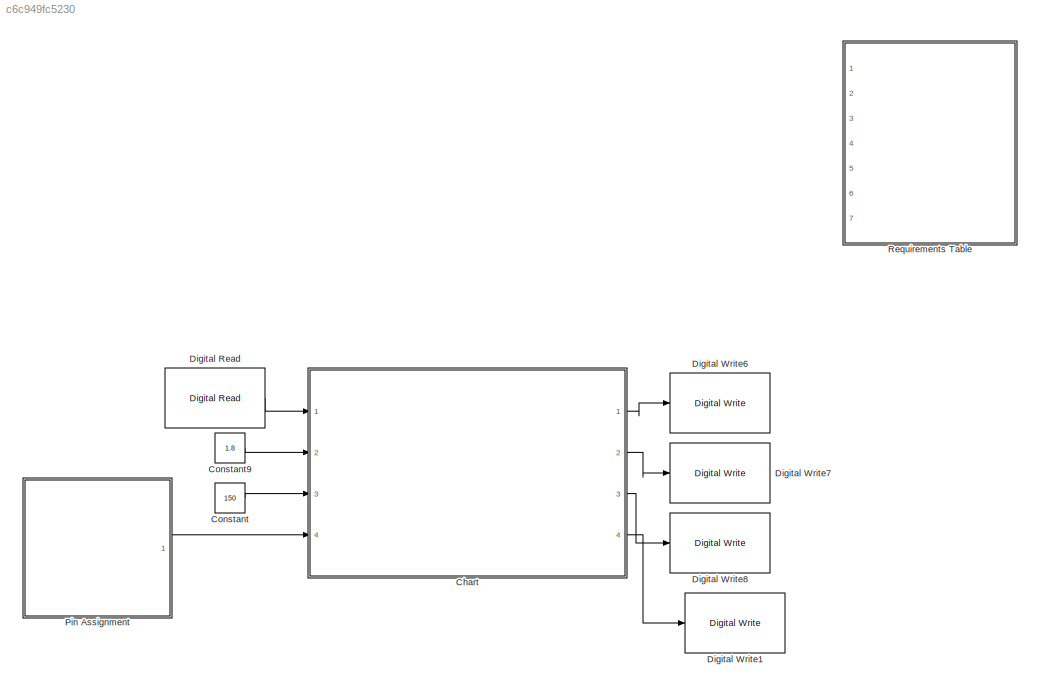
MODEL slx_c6c949fc5230
KIND model
CONFIG AbsTol = auto
CONFIG EnableMultiTasking = on
CONFIG FixedStep = 1e-3
CONFIG MaxStep = auto
CONFIG MinStep = auto
CONFIG RelTol = 1e-3
CONFIG SampleTimeConstraint = Unconstrained
CONFIG SolverName = FixedStepAuto
CONFIG StartTime = 0.0
CONFIG StopTime = 10.0
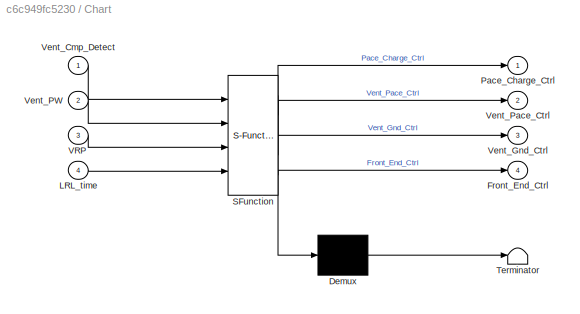
BLOCK [SubSystem] Chart
  ErrorFcn = Stateflow.Translate.translate
  PermitHierarchicalResolution = ExplicitOnly
  Ports = [4, 4]
  RequestExecContextInheritance = off
  SFBlockType = Chart
  TreatAsAtomicUnit = on
BLOCK [Demux] Chart/ Demux 
  Outputs = 1
  Ports = [1, 1]
BLOCK [S-Function] Chart/ SFunction 
  EnableBusSupport = on
  FunctionName = sf_sfun
  PortCounts = [4 5]
  Ports = [4, 5]
  SFcnIsStateOwnerBlock = off
  SFunctionDeploymentMode = off
  Tag = Stateflow S-Function 3
BLOCK [Terminator] Chart/ Terminator 
BLOCK [Outport] Chart/Front_End_Ctrl
  Port = 4
BLOCK [Inport] Chart/LRL_time
  Port = 4
BLOCK [Outport] Chart/Pace_Charge_Ctrl
BLOCK [Inport] Chart/VRP
  Port = 3
BLOCK [Inport] Chart/Vent_Cmp_Detect
BLOCK [Outport] Chart/Vent_Gnd_Ctrl
  Port = 3
BLOCK [Inport] Chart/Vent_PW
  Port = 2
BLOCK [Outport] Chart/Vent_Pace_Ctrl
  Port = 2
BLOCK [Constant] Constant
  OutDataTypeStr = int16
  Value = 150
BLOCK [Constant] Constant9
  Value = 1.8
BLOCK [Reference] Digital Read  REF=frdmk64flib/Digital Read
  Ports = [0, 1]
  SourceBlock = frdmk64flib/Digital Read
  SourceProductBaseCode = EC_FRDM_K64F
  SourceType = freedomk64f.DigitalRead
BLOCK [Reference] Digital Write1  REF=frdmk64flib/Digital Write
  Ports = [1]
  SourceBlock = frdmk64flib/Digital Write
  SourceProductBaseCode = EC_FRDM_K64F
  SourceType = freedomk64f.DigitalWrite
BLOCK [Reference] Digital Write6  REF=frdmk64flib/Digital Write
  Ports = [1]
  SourceBlock = frdmk64flib/Digital Write
  SourceProductBaseCode = EC_FRDM_K64F
  SourceType = freedomk64f.DigitalWrite
BLOCK [Reference] Digital Write7  REF=frdmk64flib/Digital Write
  Ports = [1]
  SourceBlock = frdmk64flib/Digital Write
  SourceProductBaseCode = EC_FRDM_K64F
  SourceType = freedomk64f.DigitalWrite
BLOCK [Reference] Digital Write8  REF=frdmk64flib/Digital Write
  Ports = [1]
  SourceBlock = frdmk64flib/Digital Write
  SourceProductBaseCode = EC_FRDM_K64F
  SourceType = freedomk64f.DigitalWrite
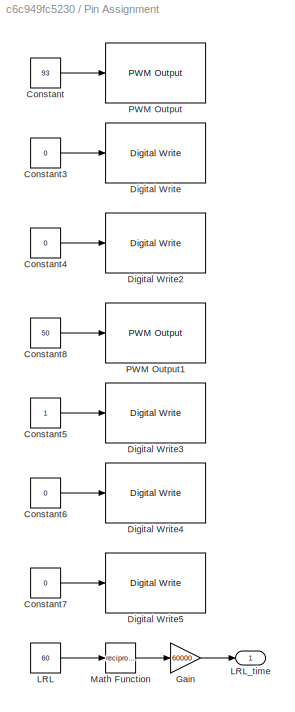
BLOCK [SubSystem] Pin Assignment
  Ports = [0, 1]
  RequestExecContextInheritance = off
BLOCK [Constant] Pin Assignment/Constant
  OutDataTypeStr = int8
  Value = 93
BLOCK [Constant] Pin Assignment/Constant3
  Value = 0
BLOCK [Constant] Pin Assignment/Constant4
  Value = 0
BLOCK [Constant] Pin Assignment/Constant5
BLOCK [Constant] Pin Assignment/Constant6
  Value = 0
BLOCK [Constant] Pin Assignment/Constant7
  Value = 0
BLOCK [Constant] Pin Assignment/Constant8
  OutDataTypeStr = int8
  Value = 50
BLOCK [Reference] Pin Assignment/Digital Write  REF=frdmk64flib/Digital Write
  Ports = [1]
  SourceBlock = frdmk64flib/Digital Write
  SourceProductBaseCode = EC_FRDM_K64F
  SourceType = freedomk64f.DigitalWrite
BLOCK [Reference] Pin Assignment/Digital Write2  REF=frdmk64flib/Digital Write
  Ports = [1]
  SourceBlock = frdmk64flib/Digital Write
  SourceProductBaseCode = EC_FRDM_K64F
  SourceType = freedomk64f.DigitalWrite
BLOCK [Reference] Pin Assignment/Digital Write3  REF=frdmk64flib/Digital Write
  Ports = [1]
  SourceBlock = frdmk64flib/Digital Write
  SourceProductBaseCode = EC_FRDM_K64F
  SourceType = freedomk64f.DigitalWrite
BLOCK [Reference] Pin Assignment/Digital Write4  REF=frdmk64flib/Digital Write
  Ports = [1]
  SourceBlock = frdmk64flib/Digital Write
  SourceProductBaseCode = EC_FRDM_K64F
  SourceType = freedomk64f.DigitalWrite
BLOCK [Reference] Pin Assignment/Digital Write5  REF=frdmk64flib/Digital Write
  Ports = [1]
  SourceBlock = frdmk64flib/Digital Write
  SourceProductBaseCode = EC_FRDM_K64F
  SourceType = freedomk64f.DigitalWrite
BLOCK [Gain] Pin Assignment/Gain
  Gain = 60000
BLOCK [Constant] Pin Assignment/LRL
  Value = 60
BLOCK [Outport] Pin Assignment/LRL_time
BLOCK [Math] Pin Assignment/Math Function
  Operator = reciprocal
  Ports = [1, 1]
BLOCK [Reference] Pin Assignment/PWM Output  REF=frdmk64flib/PWM Output
  Ports = [1]
  SourceBlock = frdmk64flib/PWM Output
  SourceProductBaseCode = EC_FRDM_K64F
  SourceType = freedomk64f.PWMOutput
BLOCK [Reference] Pin Assignment/PWM Output1  REF=frdmk64flib/PWM Output
  Ports = [1]
  SourceBlock = frdmk64flib/PWM Output
  SourceProductBaseCode = EC_FRDM_K64F
  SourceType = freedomk64f.PWMOutput
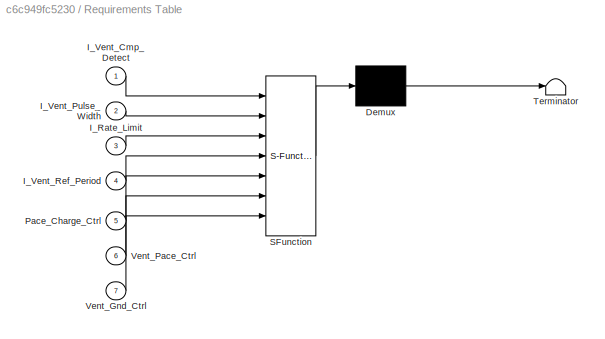
BLOCK [SubSystem] Requirements Table
  ErrorFcn = Stateflow.Translate.translate
  PermitHierarchicalResolution = ExplicitOnly
  Ports = [7]
  RequestExecContextInheritance = off
  SFBlockType = Requirements Table
  TreatAsAtomicUnit = on
BLOCK [Demux] Requirements Table/ Demux 
  Outputs = 1
  Ports = [1, 1]
BLOCK [S-Function] Requirements Table/ SFunction 
  EnableBusSupport = on
  FunctionName = sf_sfun
  PortCounts = [7 1]
  Ports = [7, 1]
  SFcnIsStateOwnerBlock = off
  SFunctionDeploymentMode = off
  Tag = Stateflow S-Function 1
BLOCK [Terminator] Requirements Table/ Terminator 
BLOCK [Inport] Requirements Table/I_Rate_Limit
  Port = 3
BLOCK [Inport] Requirements Table/I_Vent_Cmp_Detect
BLOCK [Inport] Requirements Table/I_Vent_Pulse_Width
  Port = 2
BLOCK [Inport] Requirements Table/I_Vent_Ref_Period
  Port = 4
BLOCK [Inport] Requirements Table/Pace_Charge_Ctrl
  Port = 5
BLOCK [Inport] Requirements Table/Vent_Gnd_Ctrl
  Port = 7
BLOCK [Inport] Requirements Table/Vent_Pace_Ctrl
  Port = 6
LINE Chart:1 -> Digital Write6:1
LINE Chart:2 -> Digital Write7:1
LINE Chart:3 -> Digital Write8:1
LINE Chart:4 -> Digital Write1:1
LINE Constant9:1 -> Chart:2
LINE Constant:1 -> Chart:3
LINE Digital Read:1 -> Chart:1
LINE Pin Assignment/Constant3:1 -> Pin Assignment/Digital Write:1
LINE Pin Assignment/Constant4:1 -> Pin Assignment/Digital Write2:1
LINE Pin Assignment/Constant5:1 -> Pin Assignment/Digital Write3:1
LINE Pin Assignment/Constant6:1 -> Pin Assignment/Digital Write4:1
LINE Pin Assignment/Constant7:1 -> Pin Assignment/Digital Write5:1
LINE Pin Assignment/Constant8:1 -> Pin Assignment/PWM Output1:1
LINE Pin Assignment/Constant:1 -> Pin Assignment/PWM Output:1
LINE Pin Assignment/Gain:1 -> Pin Assignment/LRL_time:1
LINE Pin Assignment/LRL:1 -> Pin Assignment/Math Function:1
LINE Pin Assignment/Math Function:1 -> Pin Assignment/Gain:1
LINE Pin Assignment:1 -> Chart:4
CHART Requirements Table states=0 transitions=28
CHART Chart states=3 transitions=5
  STATE_LABEL 'Charging\nentry:\nVent_Gnd_Ctrl = true;\nVent_Pace_Ctrl = false;\nPace_Charge_Ctrl = true;\nSensing_Pace_Cycle = LRL_time - VRP - Vent_PW;\nFront_End_Ctrl = true;\n'
  STATE_LABEL 'Pacing\nentry:\nVent_Gnd_Ctrl = false;\nVent_Pace_Ctrl = true;\nPace_Charge_Ctrl = false;\n'
  STATE_LABEL 'Refractory_Period\nentry:\nFront_End_Ctrl = false;\nVent_Gnd_Ctrl = true;\nVent_Pace_Ctrl = false;\nPace_Charge_Ctrl = true;\nFront_End_Ctrl = true;\nSensing_Pace_Cycle = LRL_time - VRP - Vent_PW;\n'
CHART  states=0 transitions=0
CHART  states=0 transitions=0
